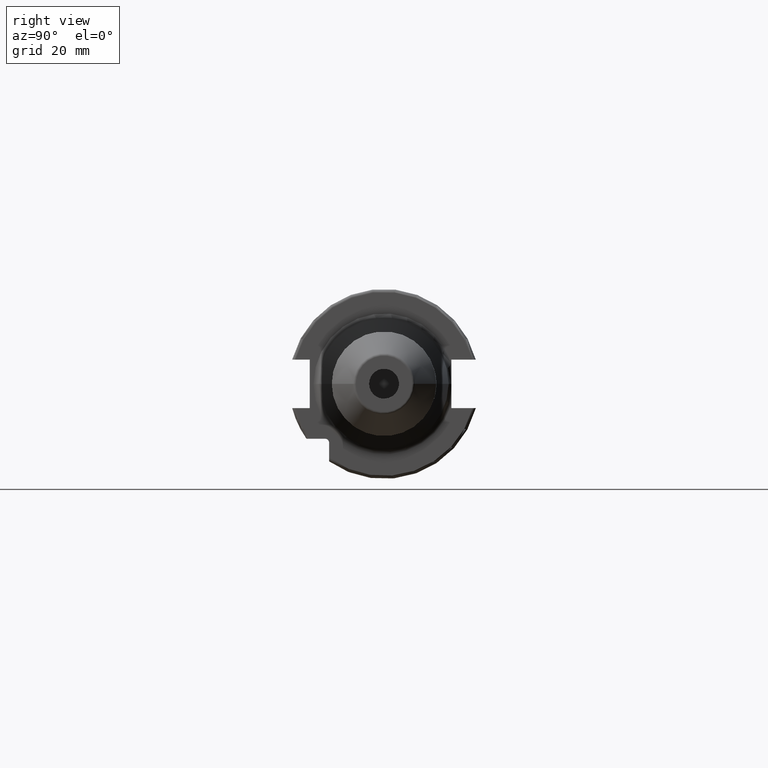
[diagram: clean part render]
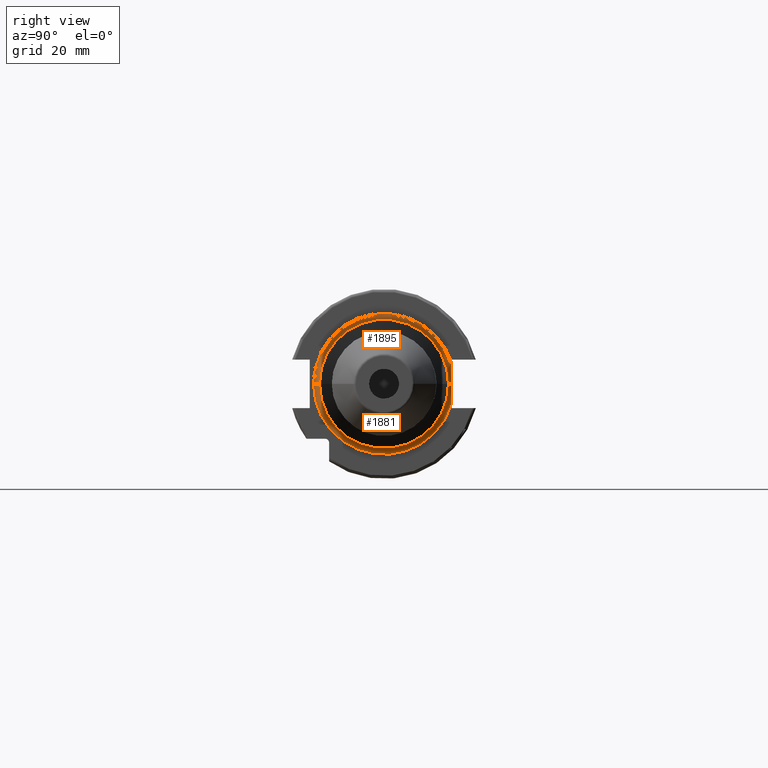
[diagram: same view with one multi-face feature highlighted, each face labeled with its STEP entity id]
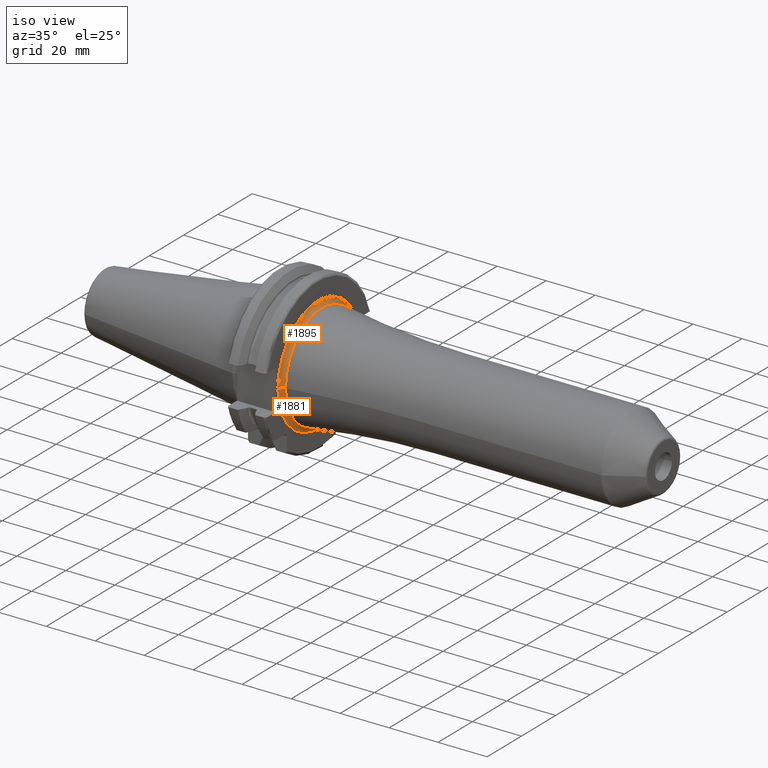
[diagram: same view with one multi-face feature highlighted, each face labeled with its STEP entity id]
A machine part, right view. The highlighted faces form ONE feature: a constant-radius fillet chain: 2 tangent blend faces with common blend radius 2 mm. The faces share edges in the B-rep.
A second angle (iso view) of the same feature is appended — it is thin or edge-on in the first view.
Their STEP definitions:
[1] entity #1881 (Torus):
#126=CARTESIAN_POINT('',(1.905E1,0.E0,0.E0));
#127=DIRECTION('',(1.E0,0.E0,0.E0));
#128=DIRECTION('',(0.E0,-1.E0,0.E0));
#129=AXIS2_PLACEMENT_3D('',#126,#127,#128);
#172=CARTESIAN_POINT('',(1.905E1,2.255001355267E1,-6.822628158136E0));
#173=CARTESIAN_POINT('',(1.905E1,2.255001355267E1,-6.394056272806E0));
#174=CARTESIAN_POINT('',(1.907299985886E1,2.254999371E1,-5.517281440406E0));
#175=CARTESIAN_POINT('',(1.915214437330E1,2.255000168598E1,-4.122246927347E0));
#176=CARTESIAN_POINT('',(1.924251045315E1,2.254999954608E1,-2.704749924995E0));
#177=CARTESIAN_POINT('',(1.930948917196E1,2.255000012969E1,-1.292397747918E0));
#178=CARTESIAN_POINT('',(1.932351625631E1,2.255E1,-4.231796090332E-1));
#179=CARTESIAN_POINT('',(1.932352627001E1,2.255E1,-9.144657148094E-4));
#181=CARTESIAN_POINT('',(2.105E1,-2.355959818596E1,9.134082379347E-13));
#182=DIRECTION('',(0.E0,-3.877106968808E-14,-1.E0));
#183=DIRECTION('',(-1.E0,2.540190280342E-13,0.E0));
#184=AXIS2_PLACEMENT_3D('',#181,#182,#183);
#186=CARTESIAN_POINT('',(2.105E1,2.355959816659E1,-9.554077506732E-4));
#187=DIRECTION('',(0.E0,4.055280328348E-5,9.999999991777E-1));
#188=DIRECTION('',(-8.632368649937E-1,-5.047990832963E-1,2.047101793942E-5));
#189=AXIS2_PLACEMENT_3D('',#186,#187,#188);
#205=CARTESIAN_POINT('',(2.074540229885E1,0.E0,0.E0));
#206=DIRECTION('',(1.E0,0.E0,0.E0));
#207=DIRECTION('',(0.E0,-1.E0,0.E0));
#208=AXIS2_PLACEMENT_3D('',#205,#206,#207);
#1642=VERTEX_POINT('',#172);
#1643=VERTEX_POINT('',#179);
#1644=CARTESIAN_POINT('',(2.074540229885E1,2.158292919228E1,
-8.752482825352E-4));
#1645=VERTEX_POINT('',#1644);
#1650=CARTESIAN_POINT('',(1.905E1,-2.355959818596E1,9.599457770347E-14));
#1651=VERTEX_POINT('',#1650);
#1652=CARTESIAN_POINT('',(2.074540229885E1,-2.158292921002E1,0.E0));
#1653=VERTEX_POINT('',#1652);
#1866=CARTESIAN_POINT('',(2.105E1,0.E0,0.E0));
#1867=DIRECTION('',(1.E0,0.E0,0.E0));
#1868=DIRECTION('',(0.E0,-9.999657865738E-1,8.271981736218E-3));
#1869=AXIS2_PLACEMENT_3D('',#1866,#1867,#1868);
#1870=TOROIDAL_SURFACE('',#1869,2.355959818596E1,2.E0);
#1871=ORIENTED_EDGE('',*,*,#1810,.F.);
#1872=ORIENTED_EDGE('',*,*,#1835,.F.);
#1874=ORIENTED_EDGE('',*,*,#1873,.T.);
#1876=ORIENTED_EDGE('',*,*,#1875,.T.);
#1878=ORIENTED_EDGE('',*,*,#1877,.F.);
#1879=EDGE_LOOP('',(#1871,#1872,#1874,#1876,#1878));
#1880=FACE_OUTER_BOUND('',#1879,.F.);
#1881=ADVANCED_FACE('',(#1880),#1870,.F.);
#130=CIRCLE('',#129,2.355959818596E1);
#180=B_SPLINE_CURVE_WITH_KNOTS('',3,(#172,#173,#174,#175,#176,#177,#178,#179),
.UNSPECIFIED.,.F.,.F.,(4,1,1,1,1,4),(0.E0,2.E-1,4.E-1,6.E-1,8.E-1,1.E0),
.UNSPECIFIED.);
#185=CIRCLE('',#184,2.E0);
#190=CIRCLE('',#189,2.E0);
#209=CIRCLE('',#208,2.158292921002E1);
#1810=EDGE_CURVE('',#1642,#1643,#180,.T.);
#1835=EDGE_CURVE('',#1651,#1642,#130,.T.);
#1873=EDGE_CURVE('',#1651,#1653,#185,.T.);
#1875=EDGE_CURVE('',#1653,#1645,#209,.T.);
#1877=EDGE_CURVE('',#1643,#1645,#190,.T.);
[2] entity #1895 (Torus):
#167=CARTESIAN_POINT('',(1.905E1,0.E0,0.E0));
#168=DIRECTION('',(1.E0,0.E0,0.E0));
#169=DIRECTION('',(0.E0,9.571547360252E-1,2.895769523020E-1));
#170=AXIS2_PLACEMENT_3D('',#167,#168,#169);
#179=CARTESIAN_POINT('',(1.932352627001E1,2.255E1,-9.144657148094E-4));
#181=CARTESIAN_POINT('',(2.105E1,-2.355959818596E1,9.134082379347E-13));
#182=DIRECTION('',(0.E0,-3.877106968808E-14,-1.E0));
#183=DIRECTION('',(-1.E0,2.540190280342E-13,0.E0));
#184=AXIS2_PLACEMENT_3D('',#181,#182,#183);
#186=CARTESIAN_POINT('',(2.105E1,2.355959816659E1,-9.554077506732E-4));
#187=DIRECTION('',(0.E0,4.055280328348E-5,9.999999991777E-1));
#188=DIRECTION('',(-8.632368649937E-1,-5.047990832963E-1,2.047101793942E-5));
#189=AXIS2_PLACEMENT_3D('',#186,#187,#188);
#191=CARTESIAN_POINT('',(1.932352627001E1,2.255E1,-9.144657148094E-4));
#192=CARTESIAN_POINT('',(1.932353629123E1,2.255E1,4.216677596216E-1));
#193=CARTESIAN_POINT('',(1.930952670624E1,2.255000011702E1,1.291370849956E0));
#194=CARTESIAN_POINT('',(1.924257148378E1,2.254999959044E1,2.703709879271E0));
#195=CARTESIAN_POINT('',(1.915220296048E1,2.255000152122E1,4.121331574131E0));
#196=CARTESIAN_POINT('',(1.907301477029E1,2.254999432467E1,5.516839318012E0));
#197=CARTESIAN_POINT('',(1.905E1,2.255001222828E1,6.393933653075E0));
#198=CARTESIAN_POINT('',(1.905E1,2.255001222828E1,6.822656762047E0));
#200=CARTESIAN_POINT('',(2.074540229885E1,0.E0,0.E0));
#201=DIRECTION('',(1.E0,0.E0,0.E0));
#202=DIRECTION('',(0.E0,1.E0,0.E0));
#203=AXIS2_PLACEMENT_3D('',#200,#201,#202);
#1643=VERTEX_POINT('',#179);
#1644=CARTESIAN_POINT('',(2.074540229885E1,2.158292919228E1,
-8.752482825352E-4));
#1645=VERTEX_POINT('',#1644);
#1650=CARTESIAN_POINT('',(1.905E1,-2.355959818596E1,9.599457770347E-14));
#1651=VERTEX_POINT('',#1650);
#1652=CARTESIAN_POINT('',(2.074540229885E1,-2.158292921002E1,0.E0));
#1653=VERTEX_POINT('',#1652);
#1654=CARTESIAN_POINT('',(1.905E1,2.255018098255E1,6.822316640153E0));
#1655=VERTEX_POINT('',#1654);
#1882=CARTESIAN_POINT('',(2.105E1,0.E0,0.E0));
#1883=DIRECTION('',(1.E0,0.E0,0.E0));
#1884=DIRECTION('',(0.E0,1.485959642861E-3,-9.999988959614E-1));
#1885=AXIS2_PLACEMENT_3D('',#1882,#1883,#1884);
#1886=TOROIDAL_SURFACE('',#1885,2.355959818596E1,2.E0);
#1887=ORIENTED_EDGE('',*,*,#1877,.T.);
#1889=ORIENTED_EDGE('',*,*,#1888,.T.);
#1890=ORIENTED_EDGE('',*,*,#1873,.F.);
#1891=ORIENTED_EDGE('',*,*,#1861,.F.);
#1892=ORIENTED_EDGE('',*,*,#1812,.F.);
#1893=EDGE_LOOP('',(#1887,#1889,#1890,#1891,#1892));
#1894=FACE_OUTER_BOUND('',#1893,.F.);
#1895=ADVANCED_FACE('',(#1894),#1886,.F.);
#171=CIRCLE('',#170,2.355959818596E1);
#185=CIRCLE('',#184,2.E0);
#190=CIRCLE('',#189,2.E0);
#199=B_SPLINE_CURVE_WITH_KNOTS('',3,(#191,#192,#193,#194,#195,#196,#197,#198),
.UNSPECIFIED.,.F.,.F.,(4,1,1,1,1,4),(0.E0,2.E-1,4.E-1,6.E-1,8.E-1,1.E0),
.UNSPECIFIED.);
#204=CIRCLE('',#203,2.158292921002E1);
#1812=EDGE_CURVE('',#1643,#1655,#199,.T.);
#1861=EDGE_CURVE('',#1655,#1651,#171,.T.);
#1873=EDGE_CURVE('',#1651,#1653,#185,.T.);
#1877=EDGE_CURVE('',#1643,#1645,#190,.T.);
#1888=EDGE_CURVE('',#1645,#1653,#204,.T.);